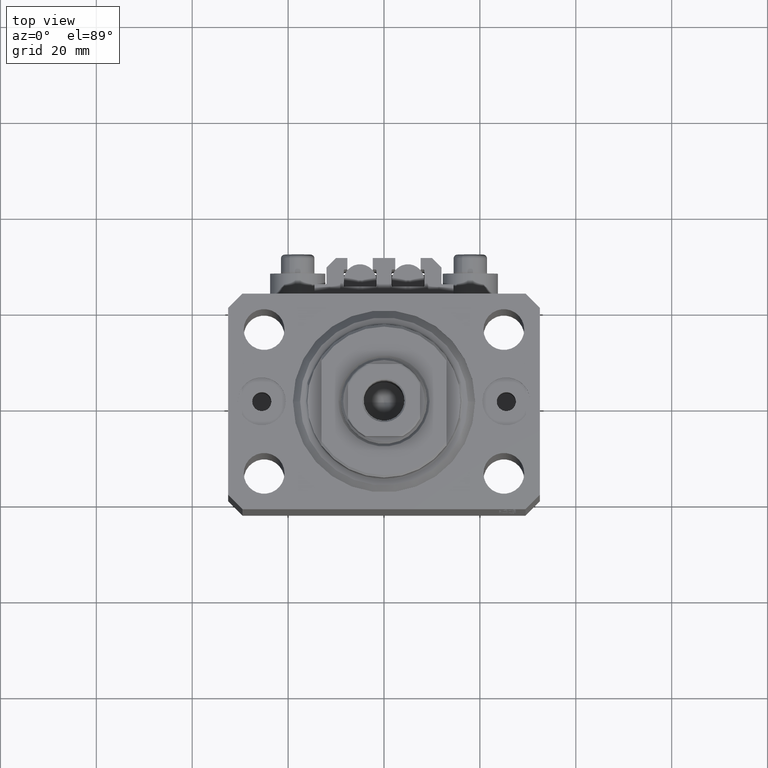
[diagram: clean part render]
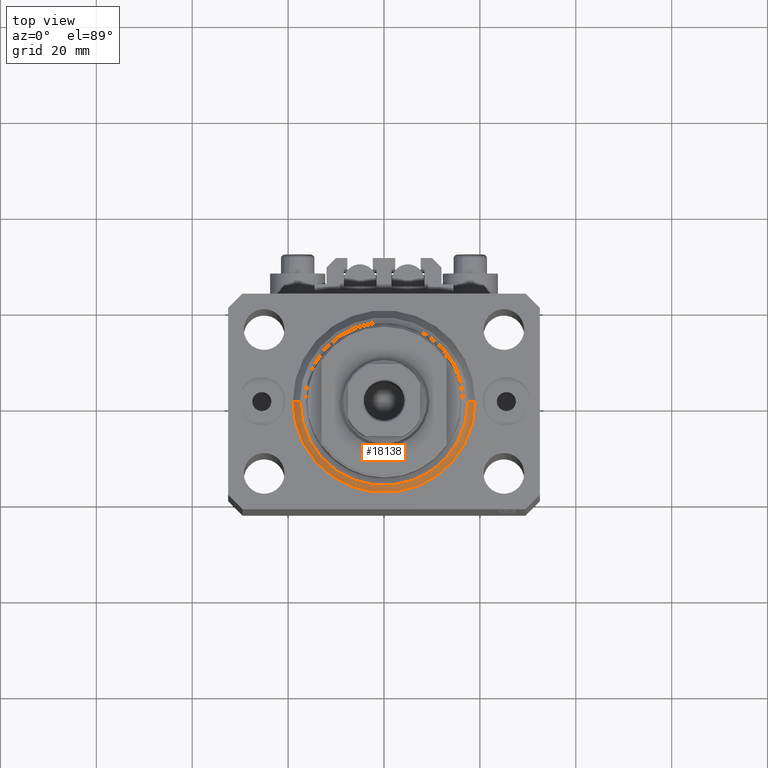
[diagram: same view with one face highlighted and labeled with its STEP entity id]
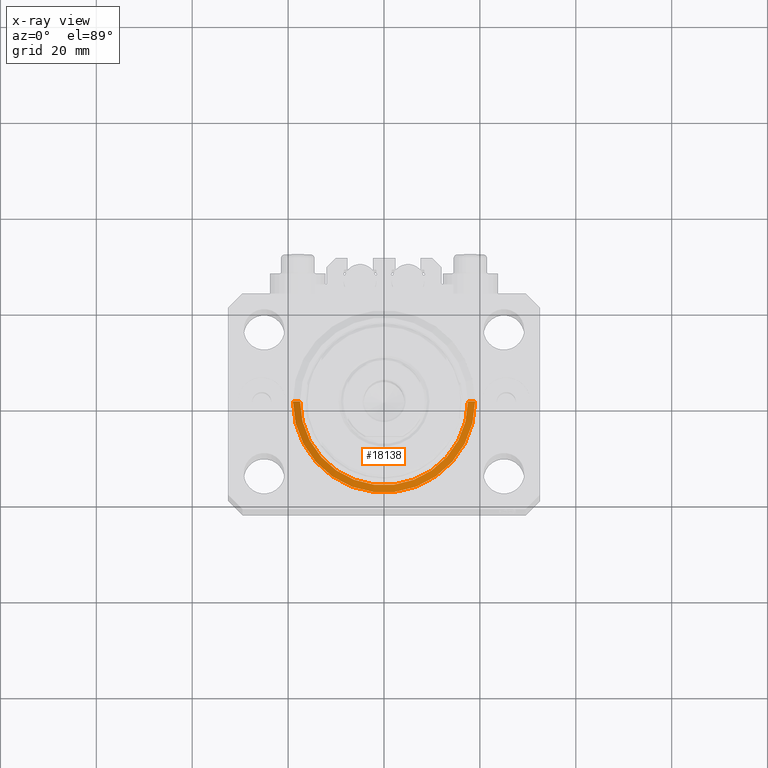
[diagram: x-ray of the same camera — body ghosted, the highlighted face saturated]
A machine part, top view. The second image highlights one B-rep face of the part: STEP entity #18138.
The next image is the same camera in x-ray: the body ghosted, the highlighted face saturated — about 0% of this face is hidden behind the body in this view.
In plain terms, the highlighted conical surface has half-angle 45 deg.
Its self-contained STEP definition (entity closure, byte-faithful):
#288 = DIRECTION ( 'NONE',  ( 1.000000000000000000, 0.000000000000000000, 0.000000000000000000 ) ) ;
#681 = DIRECTION ( 'NONE',  ( -0.7071067811865483499, 8.659560562354943952E-17, 0.7071067811865467956 ) ) ;
#1461 = DIRECTION ( 'NONE',  ( -0.000000000000000000, -0.000000000000000000, -1.000000000000000000 ) ) ;
#2751 = LINE ( 'NONE', #10037, #29271 ) ;
#6556 = EDGE_CURVE ( 'NONE', #6675, #10878, #21967, .T. ) ;
#6675 = VERTEX_POINT ( 'NONE', #8804 ) ;
#7177 = CIRCLE ( 'NONE', #17267, 17.49999999999999289 ) ;
#8254 = AXIS2_PLACEMENT_3D ( 'NONE', #16176, #30960, #45776 ) ;
#8804 = CARTESIAN_POINT ( 'NONE',  ( -19.00000000000000000, 0.000000000000000000, 1.500000000000004885 ) ) ;
#8883 = VERTEX_POINT ( 'NONE', #43468 ) ;
#9258 = VECTOR ( 'NONE', #681, 1000.000000000000000 ) ;
#10037 = CARTESIAN_POINT ( 'NONE',  ( 19.00000000000000000, 0.000000000000000000, 1.500000000000004885 ) ) ;
#10878 = VERTEX_POINT ( 'NONE', #19668 ) ;
#11614 = CARTESIAN_POINT ( 'NONE',  ( -19.00000000000000000, 2.326828918379970970E-15, 1.500000000000004885 ) ) ;
#15216 = CONICAL_SURFACE ( 'NONE', #8254, 19.00000000000000000, 0.7853981633974492782 ) ;
#15347 = CARTESIAN_POINT ( 'NONE',  ( -17.49999999999999289, 2.234980408443919215E-15, 0.000000000000000000 ) ) ;
#16176 = CARTESIAN_POINT ( 'NONE',  ( 0.000000000000000000, 0.000000000000000000, 1.500000000000004885 ) ) ;
#17242 = ORIENTED_EDGE ( 'NONE', *, *, #37825, .F. ) ;
#17267 = AXIS2_PLACEMENT_3D ( 'NONE', #18722, #1461, #46373 ) ;
#18138 = ADVANCED_FACE ( 'NONE', ( #34622 ), #15216, .T. ) ;
#18722 = CARTESIAN_POINT ( 'NONE',  ( 0.000000000000000000, 0.000000000000000000, 0.000000000000000000 ) ) ;
#18769 = CARTESIAN_POINT ( 'NONE',  ( 0.000000000000000000, 0.000000000000000000, 1.500000000000004885 ) ) ;
#18918 = LINE ( 'NONE', #11614, #9258 ) ;
#19668 = CARTESIAN_POINT ( 'NONE',  ( 19.00000000000000000, 2.326828918379970970E-15, 1.500000000000004885 ) ) ;
#20328 = ORIENTED_EDGE ( 'NONE', *, *, #6556, .F. ) ;
#21472 = EDGE_CURVE ( 'NONE', #8883, #10878, #2751, .T. ) ;
#21927 = DIRECTION ( 'NONE',  ( 0.7071067811865483499, 0.000000000000000000, 0.7071067811865467956 ) ) ;
#21967 = CIRCLE ( 'NONE', #25094, 19.00000000000000000 ) ;
#23559 = ORIENTED_EDGE ( 'NONE', *, *, #29869, .F. ) ;
#24405 = EDGE_LOOP ( 'NONE', ( #23559, #17242, #39728, #20328 ) ) ;
#25094 = AXIS2_PLACEMENT_3D ( 'NONE', #18769, #33563, #288 ) ;
#29271 = VECTOR ( 'NONE', #21927, 1000.000000000000000 ) ;
#29869 = EDGE_CURVE ( 'NONE', #36503, #6675, #18918, .T. ) ;
#30960 = DIRECTION ( 'NONE',  ( -0.000000000000000000, -0.000000000000000000, 1.000000000000000000 ) ) ;
#33563 = DIRECTION ( 'NONE',  ( -0.000000000000000000, -0.000000000000000000, 1.000000000000000000 ) ) ;
#34622 = FACE_OUTER_BOUND ( 'NONE', #24405, .T. ) ;
#36503 = VERTEX_POINT ( 'NONE', #15347 ) ;
#37825 = EDGE_CURVE ( 'NONE', #8883, #36503, #7177, .T. ) ;
#39728 = ORIENTED_EDGE ( 'NONE', *, *, #21472, .T. ) ;
#43468 = CARTESIAN_POINT ( 'NONE',  ( 17.49999999999999289, 0.000000000000000000, 0.000000000000000000 ) ) ;
#45776 = DIRECTION ( 'NONE',  ( 1.000000000000000000, 0.000000000000000000, 0.000000000000000000 ) ) ;
#46373 = DIRECTION ( 'NONE',  ( 1.000000000000000000, 0.000000000000000000, 0.000000000000000000 ) ) ;